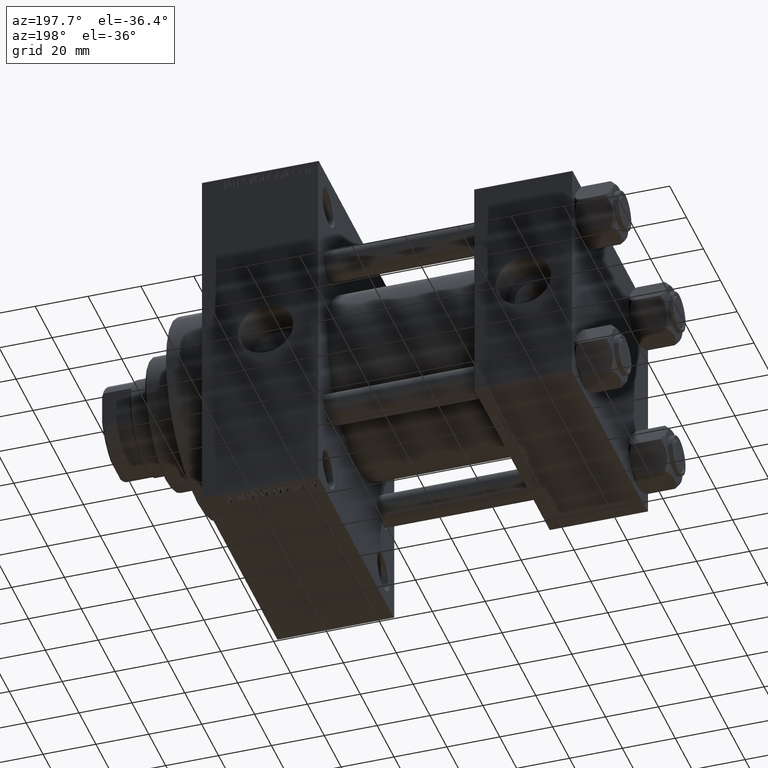
[diagram: clean part render]
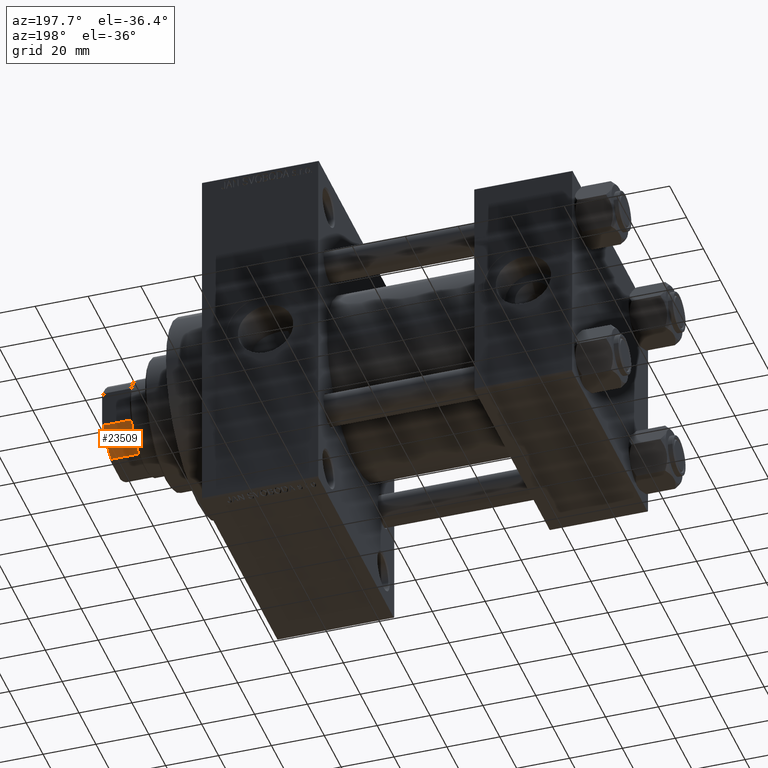
[diagram: same view with one face highlighted and labeled with its STEP entity id]
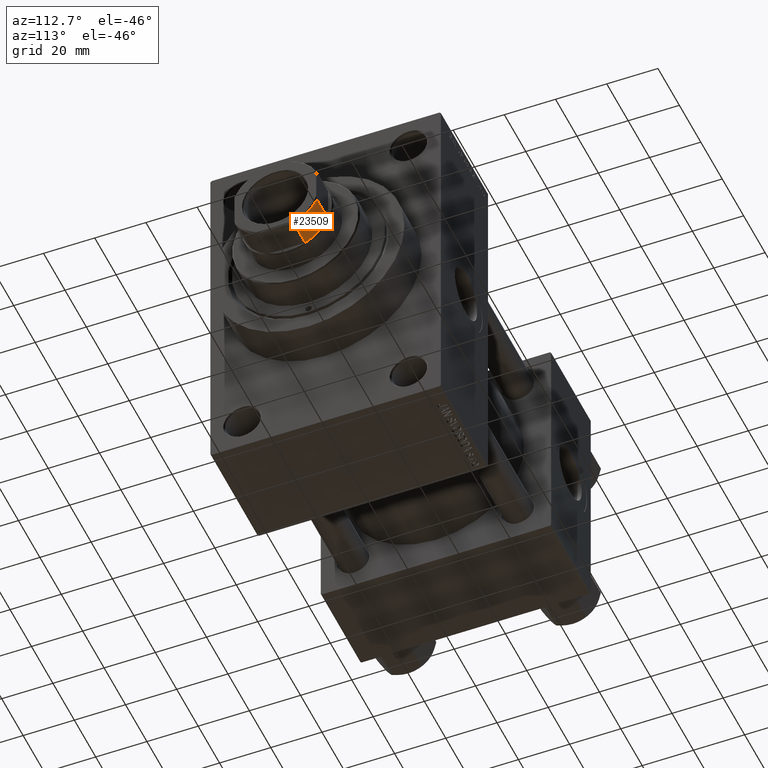
[diagram: same view with one face highlighted and labeled with its STEP entity id]
A machine part, auxiliary view. The second image highlights one B-rep face of the part: STEP entity #23509.
A second angle (auxiliary view) of the same face is appended — the face is thin or edge-on in the first view.
In plain terms, the highlighted cylindrical surface (partial cylindrical patch) has radius 17.5 mm, axis along (1, 0, 0).
Its self-contained STEP definition (entity closure, byte-faithful):
#62 = VERTEX_POINT ( 'NONE', #24055 ) ;
#1207 = DIRECTION ( 'NONE',  ( 1.000000000000000000, 0.000000000000000000, 0.000000000000000000 ) ) ;
#3460 = CARTESIAN_POINT ( 'NONE',  ( -15.99999999999999645, 7.088723439378923352, -0.001000000000001000089 ) ) ;
#3691 = DIRECTION ( 'NONE',  ( -0.000000000000000000, -0.000000000000000000, 1.000000000000000000 ) ) ;
#5057 = LINE ( 'NONE', #32710, #22815 ) ;
#8724 = CIRCLE ( 'NONE', #20987, 17.50000000000000000 ) ;
#8993 = EDGE_CURVE ( 'NONE', #62, #38954, #26905, .T. ) ;
#9052 = EDGE_CURVE ( 'NONE', #17770, #34912, #5057, .T. ) ;
#10897 = DIRECTION ( 'NONE',  ( -0.000000000000000000, -0.000000000000000000, 1.000000000000000000 ) ) ;
#13342 = DIRECTION ( 'NONE',  ( 1.000000000000000000, 1.776356839400250465E-15, 0.000000000000000000 ) ) ;
#13890 = EDGE_CURVE ( 'NONE', #17770, #62, #46627, .T. ) ;
#14442 = AXIS2_PLACEMENT_3D ( 'NONE', #45566, #34062, #1207 ) ;
#15813 = CARTESIAN_POINT ( 'NONE',  ( -7.088723439378916247, 16.00000000000000000, 139.0000000000000000 ) ) ;
#16945 = DIRECTION ( 'NONE',  ( -0.000000000000000000, -0.000000000000000000, -1.000000000000000000 ) ) ;
#17770 = VERTEX_POINT ( 'NONE', #15813 ) ;
#19779 = VECTOR ( 'NONE', #3691, 1000.000000000000000 ) ;
#19908 = CYLINDRICAL_SURFACE ( 'NONE', #33133, 17.50000000000000000 ) ;
#20987 = AXIS2_PLACEMENT_3D ( 'NONE', #27971, #16945, #13342 ) ;
#21198 = ORIENTED_EDGE ( 'NONE', *, *, #13890, .T. ) ;
#21256 = ORIENTED_EDGE ( 'NONE', *, *, #8993, .T. ) ;
#22815 = VECTOR ( 'NONE', #10897, 1000.000000000000000 ) ;
#23509 = ADVANCED_FACE ( 'NONE', ( #38115 ), #19908, .T. ) ;
#24055 = CARTESIAN_POINT ( 'NONE',  ( -15.99999999999999645, 7.088723439378924240, 139.0000000000000000 ) ) ;
#26905 = LINE ( 'NONE', #3460, #19779 ) ;
#27390 = EDGE_LOOP ( 'NONE', ( #21256, #34701, #28738, #21198 ) ) ;
#27971 = CARTESIAN_POINT ( 'NONE',  ( 0.000000000000000000, 0.000000000000000000, 149.4999999999999716 ) ) ;
#28738 = ORIENTED_EDGE ( 'NONE', *, *, #9052, .F. ) ;
#29562 = CARTESIAN_POINT ( 'NONE',  ( -7.088723439378915359, 16.00000000000000000, 149.4999999999999716 ) ) ;
#30920 = DIRECTION ( 'NONE',  ( -0.000000000000000000, -0.000000000000000000, 1.000000000000000000 ) ) ;
#31032 = EDGE_CURVE ( 'NONE', #38954, #34912, #8724, .T. ) ;
#32710 = CARTESIAN_POINT ( 'NONE',  ( -7.088723439378915359, 16.00000000000000000, -0.001000000000001000089 ) ) ;
#33133 = AXIS2_PLACEMENT_3D ( 'NONE', #34530, #30920, #45556 ) ;
#34062 = DIRECTION ( 'NONE',  ( 0.000000000000000000, 0.000000000000000000, 1.000000000000000000 ) ) ;
#34530 = CARTESIAN_POINT ( 'NONE',  ( 0.000000000000000000, 0.000000000000000000, -0.001000000000001000089 ) ) ;
#34701 = ORIENTED_EDGE ( 'NONE', *, *, #31032, .T. ) ;
#34912 = VERTEX_POINT ( 'NONE', #29562 ) ;
#36668 = CARTESIAN_POINT ( 'NONE',  ( -15.99999999999999645, 7.088723439378923352, 149.4999999999999716 ) ) ;
#38115 = FACE_OUTER_BOUND ( 'NONE', #27390, .T. ) ;
#38954 = VERTEX_POINT ( 'NONE', #36668 ) ;
#45556 = DIRECTION ( 'NONE',  ( 1.000000000000000000, 0.000000000000000000, 0.000000000000000000 ) ) ;
#45566 = CARTESIAN_POINT ( 'NONE',  ( 0.000000000000000000, 0.000000000000000000, 139.0000000000000000 ) ) ;
#46627 = CIRCLE ( 'NONE', #14442, 17.50000000000000000 ) ;